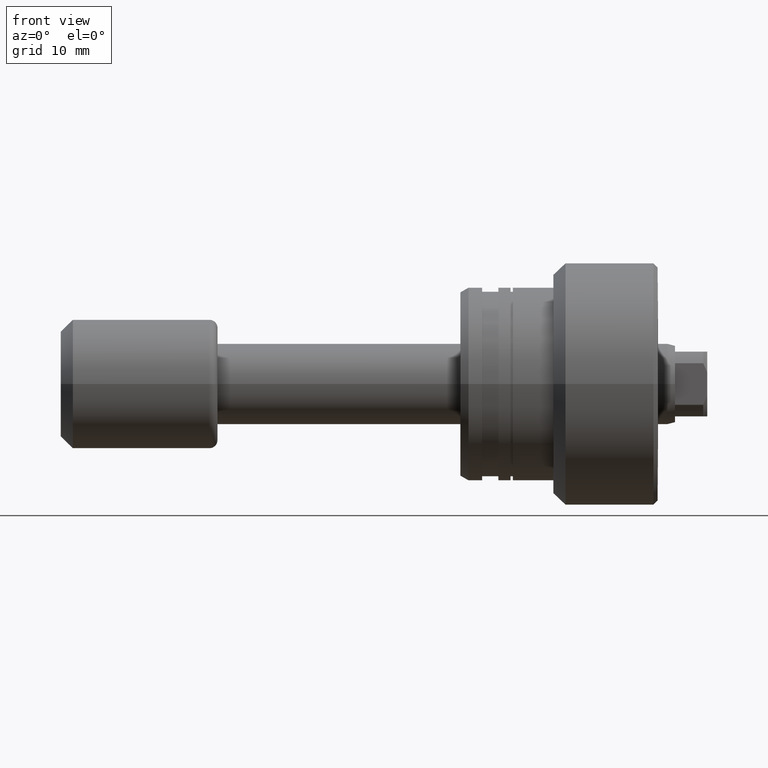
[diagram: clean part render]
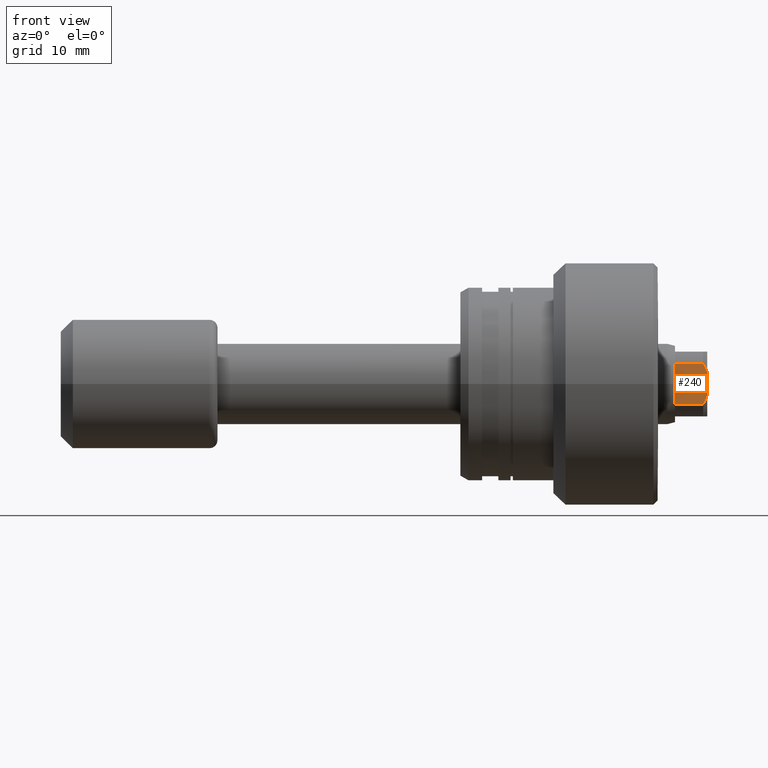
[diagram: same view with one face highlighted and labeled with its STEP entity id]
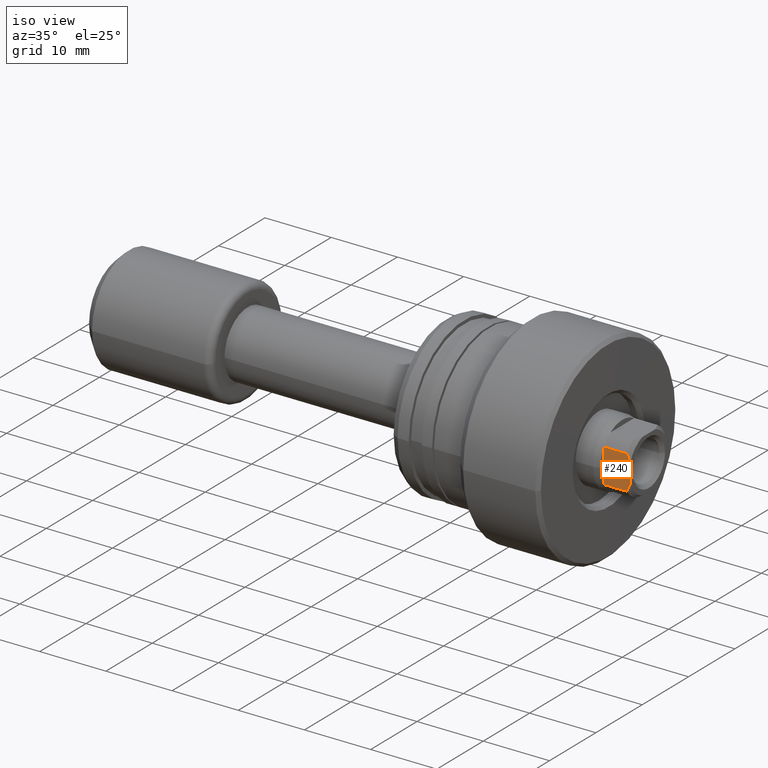
[diagram: same view with one face highlighted and labeled with its STEP entity id]
A machine part, front view. The second image highlights one B-rep face of the part: STEP entity #240.
A second angle (iso view) of the same face is appended — the face is thin or edge-on in the first view.
In plain terms, the highlighted planar face has unit normal (0, 1, 0).
Its self-contained STEP definition (entity closure, byte-faithful):
#94 = CARTESIAN_POINT ( 'NONE',  ( 80.00000000000000000, -4.000000000001325162, 1.436140661630811222 ) ) ;
#114 = ORIENTED_EDGE ( 'NONE', *, *, #143, .T. ) ;
#143 = EDGE_CURVE ( 'NONE', #1095, #365, #1464, .T. ) ;
#185 = EDGE_CURVE ( 'NONE', #863, #897, #1245, .T. ) ;
#240 = ADVANCED_FACE ( 'NONE', ( #2211 ), #699, .F. ) ;
#365 = VERTEX_POINT ( 'NONE', #677 ) ;
#426 = EDGE_LOOP ( 'NONE', ( #2395, #2123, #2184, #114, #508, #518 ) ) ;
#499 = DIRECTION ( 'NONE',  ( 1.657264799492230625E-14, 1.000000000000000000, 5.078750300251266878E-16 ) ) ;
#508 = ORIENTED_EDGE ( 'NONE', *, *, #610, .F. ) ;
#518 = ORIENTED_EDGE ( 'NONE', *, *, #1396, .F. ) ;
#524 = CARTESIAN_POINT ( 'NONE',  ( 80.00000000000007105, -4.000000000001323386, -1.436140661630859183 ) ) ;
#551 = VECTOR ( 'NONE', #1578, 1000.000000000000000 ) ;
#610 = EDGE_CURVE ( 'NONE', #1301, #365, #1947, .T. ) ;
#677 = CARTESIAN_POINT ( 'NONE',  ( 79.50000000000007105, -4.000000000000715872, 2.561737691492164792 ) ) ;
#699 = PLANE ( 'NONE',  #1597 ) ;
#731 = DIRECTION ( 'NONE',  ( -1.000000000000000000, 1.657264799492230625E-14, 0.000000000000000000 ) ) ;
#744 = LINE ( 'NONE', #2038, #1279 ) ;
#815 = CARTESIAN_POINT ( 'NONE',  ( 76.00000000000000000, -4.000000000000657252, 2.561737691492164792 ) ) ;
#831 = CARTESIAN_POINT ( 'NONE',  ( 76.00000000000000000, -4.000000000001859846, -2.561737691490286295 ) ) ;
#863 = VERTEX_POINT ( 'NONE', #1145 ) ;
#865 = CARTESIAN_POINT ( 'NONE',  ( 80.00000000000007105, -4.000000000001323386, -1.436140661630859183 ) ) ;
#881 = VECTOR ( 'NONE', #2393, 1000.000000000000000 ) ;
#897 = VERTEX_POINT ( 'NONE', #1100 ) ;
#899 = LINE ( 'NONE', #1060, #881 ) ;
#923 = EDGE_CURVE ( 'NONE', #897, #1776, #2028, .T. ) ;
#1060 = CARTESIAN_POINT ( 'NONE',  ( 80.00000000000000000, -4.000000000001323386, -2.561737691489901270 ) ) ;
#1085 = DIRECTION ( 'NONE',  ( 0.000000000000000000, -5.078750300251266878E-16, 1.000000000000000000 ) ) ;
#1091 = CARTESIAN_POINT ( 'NONE',  ( 80.00000000000000000, -4.000000000001325162, 1.436140661630811222 ) ) ;
#1095 = VERTEX_POINT ( 'NONE', #1091 ) ;
#1100 = CARTESIAN_POINT ( 'NONE',  ( 79.50000000000008527, -4.000000000001917577, -2.561737691490286295 ) ) ;
#1145 = CARTESIAN_POINT ( 'NONE',  ( 76.00000000000000000, -4.000000000001859846, -2.561737691490286295 ) ) ;
#1245 = LINE ( 'NONE', #831, #1321 ) ;
#1277 = CARTESIAN_POINT ( 'NONE',  ( 79.86800940637697011, -4.000000000001321609, -1.826743085115765552 ) ) ;
#1279 = VECTOR ( 'NONE', #1085, 1000.000000000000000 ) ;
#1296 = CARTESIAN_POINT ( 'NONE',  ( 79.50000000000008527, -4.000000000001917577, -2.561737691490286295 ) ) ;
#1301 = VERTEX_POINT ( 'NONE', #1954 ) ;
#1321 = VECTOR ( 'NONE', #2005, 1000.000000000000000 ) ;
#1396 = EDGE_CURVE ( 'NONE', #863, #1301, #744, .T. ) ;
#1433 = CARTESIAN_POINT ( 'NONE',  ( 79.69545340717230886, -4.000000000001321609, 2.199326002284701875 ) ) ;
#1464 = B_SPLINE_CURVE_WITH_KNOTS ( 'NONE', 3,
 ( #94, #2364, #1433, #2187 ),
 .UNSPECIFIED., .F., .F.,
 ( 4, 4 ),
 ( 2.910835495304921789E-17, 0.001231652821875021562 ),
 .UNSPECIFIED. ) ;
#1471 = CARTESIAN_POINT ( 'NONE',  ( 76.00000000000000000, -4.000000000001257661, -2.561737691489901270 ) ) ;
#1542 = CARTESIAN_POINT ( 'NONE',  ( 79.69545340717326098, -4.000000000000385469, -2.199326002284341275 ) ) ;
#1578 = DIRECTION ( 'NONE',  ( 1.000000000000000000, -1.657264799492230625E-14, -0.000000000000000000 ) ) ;
#1597 = AXIS2_PLACEMENT_3D ( 'NONE', #1471, #499, #731 ) ;
#1776 = VERTEX_POINT ( 'NONE', #865 ) ;
#1947 = LINE ( 'NONE', #815, #551 ) ;
#1954 = CARTESIAN_POINT ( 'NONE',  ( 76.00000000000000000, -4.000000000000657252, 2.561737691492164792 ) ) ;
#2005 = DIRECTION ( 'NONE',  ( 1.000000000000000000, -1.657264799492230625E-14, -0.000000000000000000 ) ) ;
#2028 = B_SPLINE_CURVE_WITH_KNOTS ( 'NONE', 3,
 ( #1296, #1542, #1277, #524 ),
 .UNSPECIFIED., .F., .F.,
 ( 4, 4 ),
 ( 8.971493569808716528E-16, 0.001231652821872355726 ),
 .UNSPECIFIED. ) ;
#2038 = CARTESIAN_POINT ( 'NONE',  ( 76.00000000000000000, -4.000000000001257661, -2.561737691489901270 ) ) ;
#2123 = ORIENTED_EDGE ( 'NONE', *, *, #923, .T. ) ;
#2184 = ORIENTED_EDGE ( 'NONE', *, *, #2227, .T. ) ;
#2187 = CARTESIAN_POINT ( 'NONE',  ( 79.50000000000007105, -4.000000000000715872, 2.561737691492164792 ) ) ;
#2211 = FACE_OUTER_BOUND ( 'NONE', #426, .T. ) ;
#2227 = EDGE_CURVE ( 'NONE', #1776, #1095, #899, .T. ) ;
#2364 = CARTESIAN_POINT ( 'NONE',  ( 79.86800940637657220, -4.000000000001323386, 1.826743085116866894 ) ) ;
#2393 = DIRECTION ( 'NONE',  ( 0.000000000000000000, -5.078750300251266878E-16, 1.000000000000000000 ) ) ;
#2395 = ORIENTED_EDGE ( 'NONE', *, *, #185, .T. ) ;